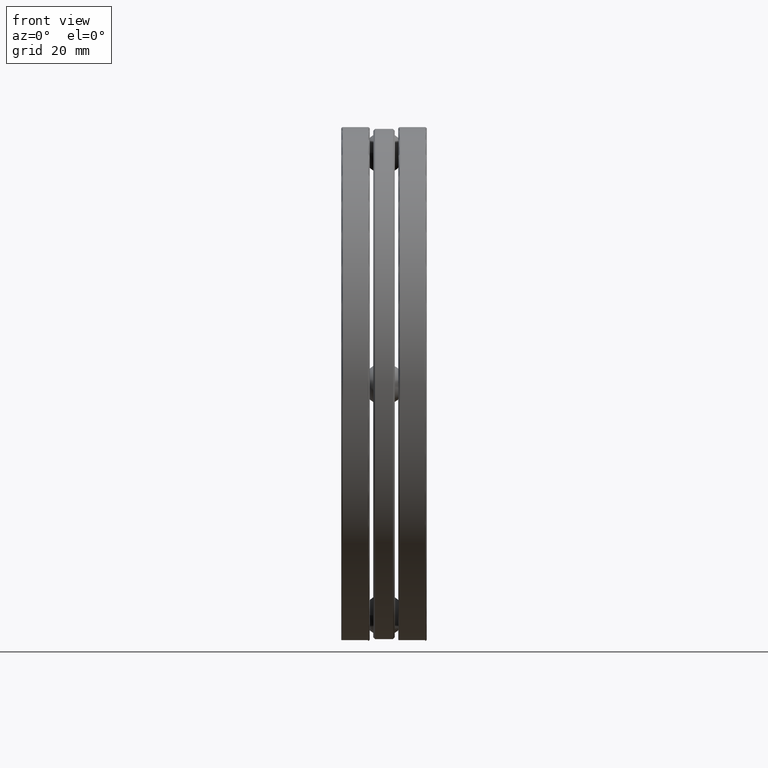
[diagram: clean part render]
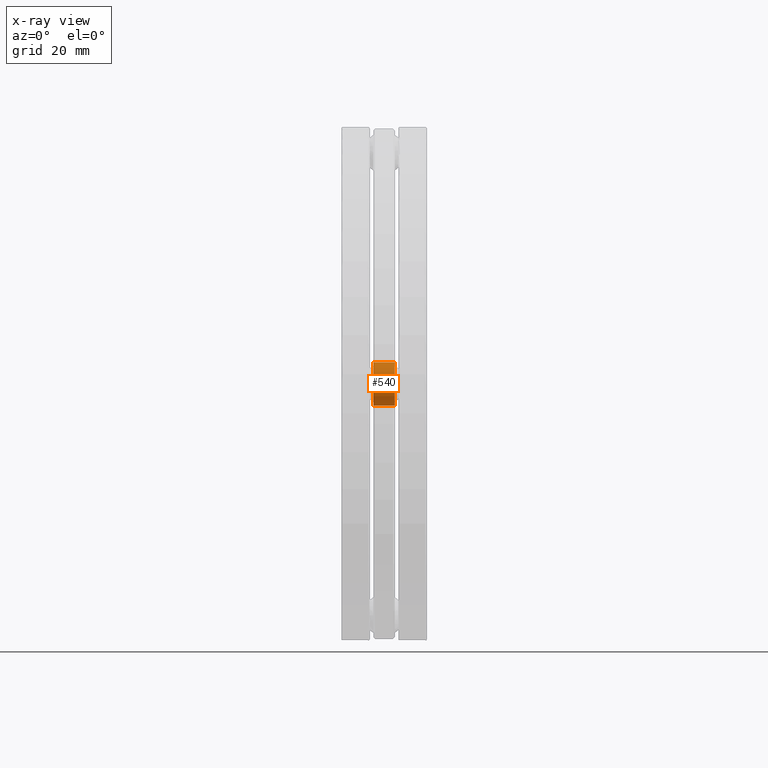
[diagram: x-ray — body ghosted, one internal face saturated and labeled with its STEP entity id]
A machine part, front view, then the same camera in x-ray: the body is ghosted and one INTERNAL B-rep face — a face not visible from any outside direction — is saturated and labeled: STEP entity #540.
In plain terms, the highlighted cylindrical surface (bore or boss wall) has radius 6.2738 mm, axis along (1, -0, -0).
Its self-contained STEP definition (entity closure, byte-faithful):
#57 = VERTEX_POINT ( 'NONE', #188 ) ;
#117 = ORIENTED_EDGE ( 'NONE', *, *, #314, .T. ) ;
#126 = DIRECTION ( 'NONE',  ( 0.0000000000000000000, 0.0000000000000000000, -1.000000000000000000 ) ) ;
#177 = CIRCLE ( 'NONE', #353, 0.2470000000000007500 ) ;
#188 = CARTESIAN_POINT ( 'NONE',  ( -0.1229999999999999600, 2.657499999999999800, -0.2470000000000007500 ) ) ;
#212 = DIRECTION ( 'NONE',  ( -1.000000000000000000, -0.0000000000000000000, -0.0000000000000000000 ) ) ;
#279 = VERTEX_POINT ( 'NONE', #803 ) ;
#313 = DIRECTION ( 'NONE',  ( 1.000000000000000000, -0.0000000000000000000, 0.0000000000000000000 ) ) ;
#314 = EDGE_CURVE ( 'NONE', #279, #279, #789, .T. ) ;
#318 = DIRECTION ( 'NONE',  ( 0.0000000000000000000, 0.0000000000000000000, -1.000000000000000000 ) ) ;
#321 = CYLINDRICAL_SURFACE ( 'NONE', #386, 0.2470000000000007500 ) ;
#351 = ORIENTED_EDGE ( 'NONE', *, *, #622, .T. ) ;
#353 = AXIS2_PLACEMENT_3D ( 'NONE', #649, #212, #525 ) ;
#379 = FACE_OUTER_BOUND ( 'NONE', #513, .T. ) ;
#386 = AXIS2_PLACEMENT_3D ( 'NONE', #814, #758, #126 ) ;
#455 = AXIS2_PLACEMENT_3D ( 'NONE', #500, #313, #318 ) ;
#474 = FACE_OUTER_BOUND ( 'NONE', #582, .T. ) ;
#500 = CARTESIAN_POINT ( 'NONE',  ( 0.1230000000000000300, 2.657499999999999800, 0.0000000000000000000 ) ) ;
#513 = EDGE_LOOP ( 'NONE', ( #117 ) ) ;
#525 = DIRECTION ( 'NONE',  ( 0.0000000000000000000, 0.0000000000000000000, -1.000000000000000000 ) ) ;
#540 = ADVANCED_FACE ( 'NONE', ( #379, #474 ), #321, .F. ) ;
#582 = EDGE_LOOP ( 'NONE', ( #351 ) ) ;
#622 = EDGE_CURVE ( 'NONE', #57, #57, #177, .T. ) ;
#649 = CARTESIAN_POINT ( 'NONE',  ( -0.1229999999999999600, 2.657499999999999800, 0.0000000000000000000 ) ) ;
#758 = DIRECTION ( 'NONE',  ( 1.000000000000000000, -0.0000000000000000000, -0.0000000000000000000 ) ) ;
#789 = CIRCLE ( 'NONE', #455, 0.2470000000000007500 ) ;
#803 = CARTESIAN_POINT ( 'NONE',  ( 0.1230000000000000300, 2.657499999999999800, -0.2470000000000007500 ) ) ;
#814 = CARTESIAN_POINT ( 'NONE',  ( -0.4920393700787399300, 2.657499999999999800, 0.0000000000000000000 ) ) ;